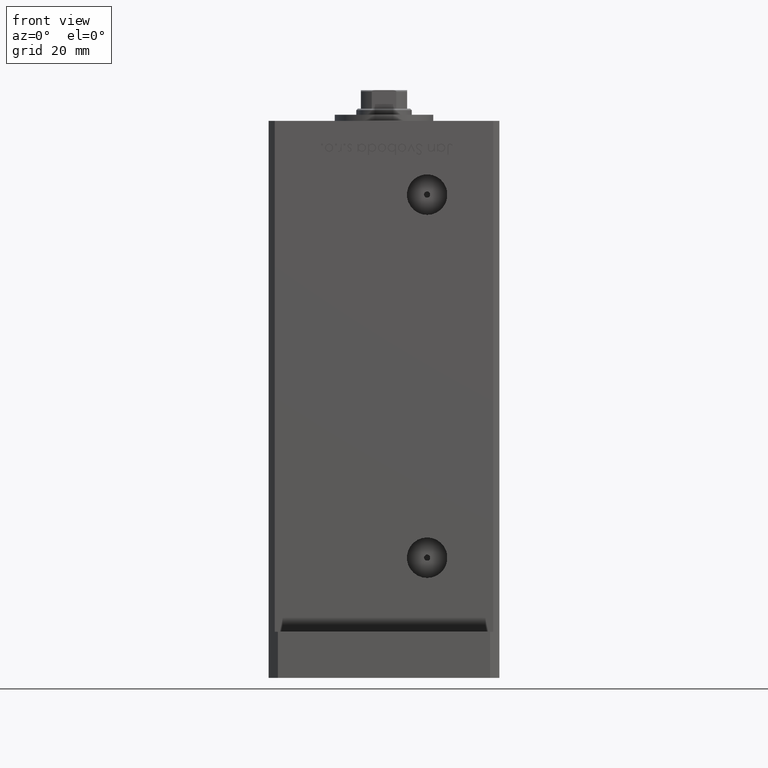
[diagram: clean part render]
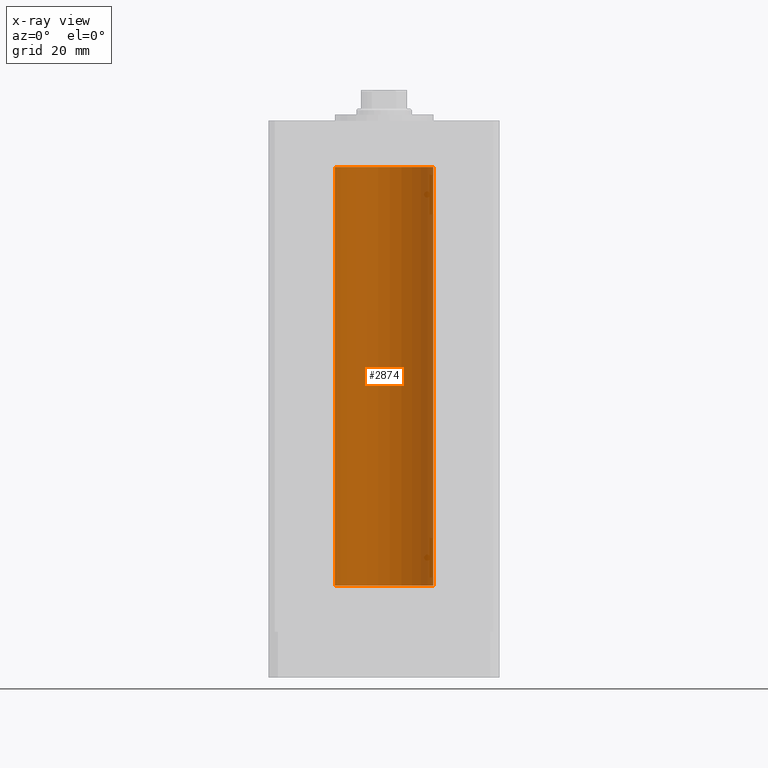
[diagram: x-ray — body ghosted, one internal face saturated and labeled with its STEP entity id]
A machine part, front view, then the same camera in x-ray: the body is ghosted and one INTERNAL B-rep face — a face not visible from any outside direction — is saturated and labeled: STEP entity #2874.
In plain terms, the highlighted cylindrical surface (partial cylindrical patch) has radius 16 mm, axis along (-0, -0, -1).
Its self-contained STEP definition (entity closure, byte-faithful):
#43 = ORIENTED_EDGE ( 'NONE', *, *, #52781, .T. ) ;
#852 = DIRECTION ( 'NONE',  ( -1.000000000000000000, 0.000000000000000000, 0.000000000000000000 ) ) ;
#2874 = ADVANCED_FACE ( 'NONE', ( #51068 ), #42966, .F. ) ;
#3123 = AXIS2_PLACEMENT_3D ( 'NONE', #44383, #18593, #22923 ) ;
#4891 = CARTESIAN_POINT ( 'NONE',  ( 16.00000000000000000, 1.959434878635765131E-15, 136.0000000000000000 ) ) ;
#7797 = CIRCLE ( 'NONE', #9555, 16.00000000000000000 ) ;
#9555 = AXIS2_PLACEMENT_3D ( 'NONE', #39592, #52054, #51786 ) ;
#10311 = EDGE_CURVE ( 'NONE', #42561, #24818, #29955, .T. ) ;
#12748 = ORIENTED_EDGE ( 'NONE', *, *, #10311, .F. ) ;
#12891 = ORIENTED_EDGE ( 'NONE', *, *, #15466, .T. ) ;
#13499 = CARTESIAN_POINT ( 'NONE',  ( -16.00000000000000000, 0.000000000000000000, 136.0000000000000000 ) ) ;
#14418 = CIRCLE ( 'NONE', #3123, 16.00000000000000000 ) ;
#14456 = DIRECTION ( 'NONE',  ( -0.000000000000000000, -0.000000000000000000, -1.000000000000000000 ) ) ;
#15466 = EDGE_CURVE ( 'NONE', #51116, #19264, #45812, .T. ) ;
#18593 = DIRECTION ( 'NONE',  ( -0.000000000000000000, 0.000000000000000000, 1.000000000000000000 ) ) ;
#19264 = VERTEX_POINT ( 'NONE', #40253 ) ;
#22284 = CARTESIAN_POINT ( 'NONE',  ( 16.00000000000000000, 1.959434878635765131E-15, 0.000000000000000000 ) ) ;
#22923 = DIRECTION ( 'NONE',  ( 1.000000000000000000, 0.000000000000000000, 0.000000000000000000 ) ) ;
#24818 = VERTEX_POINT ( 'NONE', #22284 ) ;
#25459 = DIRECTION ( 'NONE',  ( -0.000000000000000000, -0.000000000000000000, -1.000000000000000000 ) ) ;
#29955 = LINE ( 'NONE', #30764, #44191 ) ;
#30764 = CARTESIAN_POINT ( 'NONE',  ( 16.00000000000000000, 1.959434878635765131E-15, 136.0000000000000000 ) ) ;
#31114 = EDGE_CURVE ( 'NONE', #24818, #19264, #7797, .T. ) ;
#34020 = ORIENTED_EDGE ( 'NONE', *, *, #31114, .F. ) ;
#38083 = DIRECTION ( 'NONE',  ( -0.000000000000000000, -0.000000000000000000, -1.000000000000000000 ) ) ;
#39592 = CARTESIAN_POINT ( 'NONE',  ( 0.000000000000000000, 0.000000000000000000, 0.000000000000000000 ) ) ;
#40253 = CARTESIAN_POINT ( 'NONE',  ( -16.00000000000000000, 0.000000000000000000, 0.000000000000000000 ) ) ;
#40644 = AXIS2_PLACEMENT_3D ( 'NONE', #51614, #38083, #852 ) ;
#42561 = VERTEX_POINT ( 'NONE', #4891 ) ;
#42966 = CYLINDRICAL_SURFACE ( 'NONE', #40644, 16.00000000000000000 ) ;
#44191 = VECTOR ( 'NONE', #14456, 1000.000000000000000 ) ;
#44383 = CARTESIAN_POINT ( 'NONE',  ( 0.000000000000000000, 0.000000000000000000, 136.0000000000000000 ) ) ;
#45377 = CARTESIAN_POINT ( 'NONE',  ( -16.00000000000000000, 0.000000000000000000, 136.0000000000000000 ) ) ;
#45812 = LINE ( 'NONE', #13499, #46090 ) ;
#46090 = VECTOR ( 'NONE', #25459, 1000.000000000000000 ) ;
#51068 = FACE_OUTER_BOUND ( 'NONE', #53201, .T. ) ;
#51116 = VERTEX_POINT ( 'NONE', #45377 ) ;
#51614 = CARTESIAN_POINT ( 'NONE',  ( 0.000000000000000000, 0.000000000000000000, 136.0000000000000000 ) ) ;
#51786 = DIRECTION ( 'NONE',  ( 1.000000000000000000, 0.000000000000000000, 0.000000000000000000 ) ) ;
#52054 = DIRECTION ( 'NONE',  ( -0.000000000000000000, 0.000000000000000000, 1.000000000000000000 ) ) ;
#52781 = EDGE_CURVE ( 'NONE', #42561, #51116, #14418, .T. ) ;
#53201 = EDGE_LOOP ( 'NONE', ( #12748, #43, #12891, #34020 ) ) ;